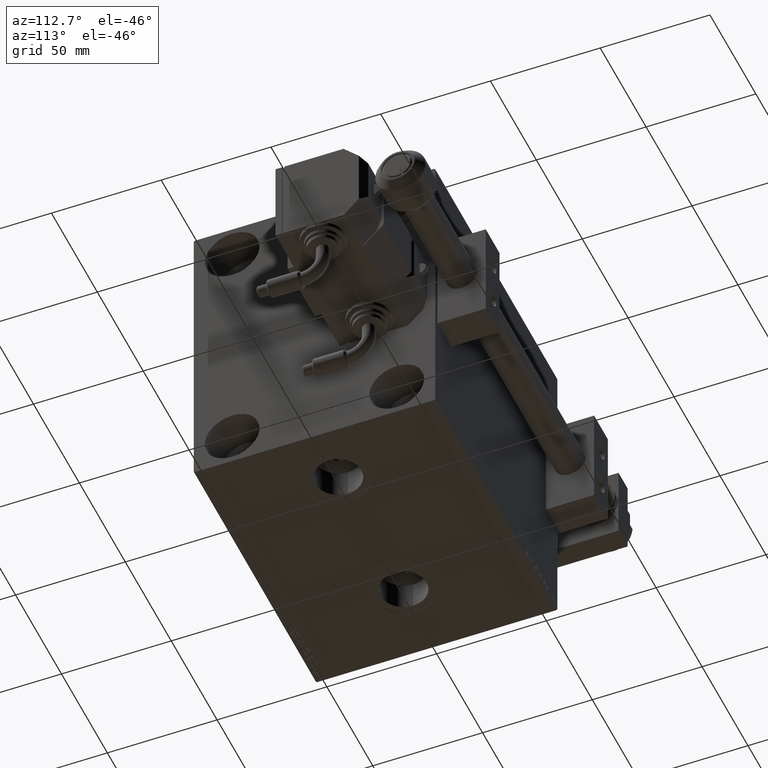
[diagram: clean part render]
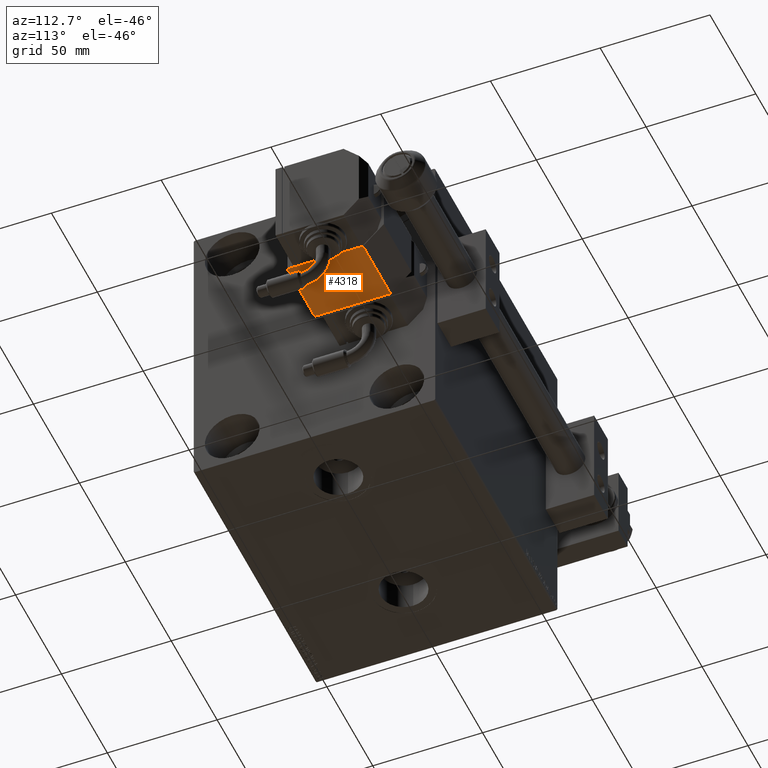
[diagram: same view with one face highlighted and labeled with its STEP entity id]
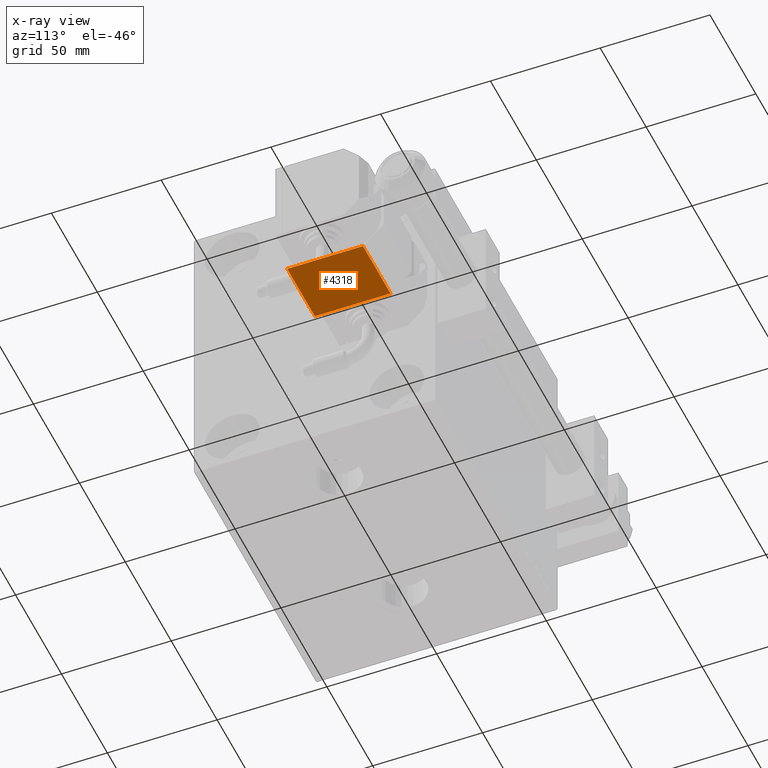
[diagram: x-ray of the same camera — body ghosted, the highlighted face saturated]
A machine part, auxiliary view. The second image highlights one B-rep face of the part: STEP entity #4318.
The next image is the same camera in x-ray: the body ghosted, the highlighted face saturated — about 0% of this face is hidden behind the body in this view.
In plain terms, the highlighted planar face has unit normal (0, 0, 1).
Its self-contained STEP definition (entity closure, byte-faithful):
#415 = VERTEX_POINT ( 'NONE', #3623 ) ;
#1672 = VERTEX_POINT ( 'NONE', #32225 ) ;
#1707 = FACE_OUTER_BOUND ( 'NONE', #17865, .T. ) ;
#1912 = DIRECTION ( 'NONE',  ( -0.000000000000000000, 1.000000000000000000, -0.000000000000000000 ) ) ;
#2318 = ORIENTED_EDGE ( 'NONE', *, *, #25574, .T. ) ;
#2671 = DIRECTION ( 'NONE',  ( -0.000000000000000000, 1.000000000000000000, -0.000000000000000000 ) ) ;
#3188 = CARTESIAN_POINT ( 'NONE',  ( 20.00000000000000000, 21.99999999999999645, 30.00000000000000000 ) ) ;
#3261 = LINE ( 'NONE', #35644, #52436 ) ;
#3623 = CARTESIAN_POINT ( 'NONE',  ( 20.00000000000000000, 12.49999999999995204, 0.000000000000000000 ) ) ;
#4318 = ADVANCED_FACE ( 'NONE', ( #1707 ), #26111, .F. ) ;
#5631 = CARTESIAN_POINT ( 'NONE',  ( 20.00000000000000000, 21.99999999999999645, 0.000000000000000000 ) ) ;
#6200 = DIRECTION ( 'NONE',  ( -1.000000000000000000, 0.000000000000000000, 0.000000000000000000 ) ) ;
#7275 = VERTEX_POINT ( 'NONE', #15888 ) ;
#11481 = DIRECTION ( 'NONE',  ( -0.000000000000000000, -0.000000000000000000, -1.000000000000000000 ) ) ;
#11860 = EDGE_CURVE ( 'NONE', #7275, #415, #46223, .T. ) ;
#13468 = ORIENTED_EDGE ( 'NONE', *, *, #22059, .F. ) ;
#15888 = CARTESIAN_POINT ( 'NONE',  ( 20.00000000000000000, -22.00000000000000000, 0.000000000000000000 ) ) ;
#17865 = EDGE_LOOP ( 'NONE', ( #40661, #2318, #13468, #36109 ) ) ;
#17881 = CARTESIAN_POINT ( 'NONE',  ( 20.00000000000000000, 21.99999999999999645, 30.00000000000000000 ) ) ;
#19113 = CARTESIAN_POINT ( 'NONE',  ( 20.00000000000000000, 12.49999999999995204, 30.00000000000000000 ) ) ;
#20014 = VECTOR ( 'NONE', #32295, 1000.000000000000000 ) ;
#21596 = DIRECTION ( 'NONE',  ( 0.000000000000000000, 0.000000000000000000, 1.000000000000000000 ) ) ;
#22059 = EDGE_CURVE ( 'NONE', #39782, #1672, #51466, .T. ) ;
#25574 = EDGE_CURVE ( 'NONE', #415, #1672, #35320, .T. ) ;
#26111 = PLANE ( 'NONE',  #32181 ) ;
#32181 = AXIS2_PLACEMENT_3D ( 'NONE', #17881, #6200, #21596 ) ;
#32225 = CARTESIAN_POINT ( 'NONE',  ( 20.00000000000000000, 12.49999999999995204, 30.00000000000000000 ) ) ;
#32295 = DIRECTION ( 'NONE',  ( 0.000000000000000000, 0.000000000000000000, 1.000000000000000000 ) ) ;
#32347 = CARTESIAN_POINT ( 'NONE',  ( 20.00000000000000000, -22.00000000000000000, 30.00000000000000000 ) ) ;
#35320 = LINE ( 'NONE', #19113, #20014 ) ;
#35644 = CARTESIAN_POINT ( 'NONE',  ( 20.00000000000000000, -22.00000000000000000, 30.00000000000000000 ) ) ;
#36109 = ORIENTED_EDGE ( 'NONE', *, *, #40309, .T. ) ;
#39782 = VERTEX_POINT ( 'NONE', #32347 ) ;
#40309 = EDGE_CURVE ( 'NONE', #39782, #7275, #3261, .T. ) ;
#40661 = ORIENTED_EDGE ( 'NONE', *, *, #11860, .T. ) ;
#41672 = VECTOR ( 'NONE', #1912, 1000.000000000000000 ) ;
#42755 = VECTOR ( 'NONE', #2671, 1000.000000000000000 ) ;
#46223 = LINE ( 'NONE', #5631, #41672 ) ;
#51466 = LINE ( 'NONE', #3188, #42755 ) ;
#52436 = VECTOR ( 'NONE', #11481, 1000.000000000000000 ) ;